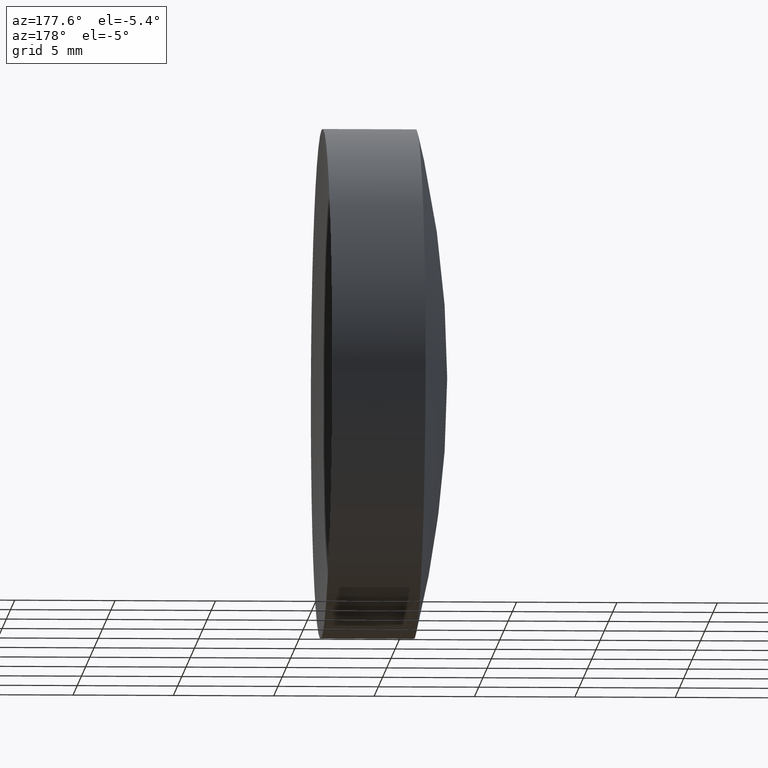
[diagram: clean part render]
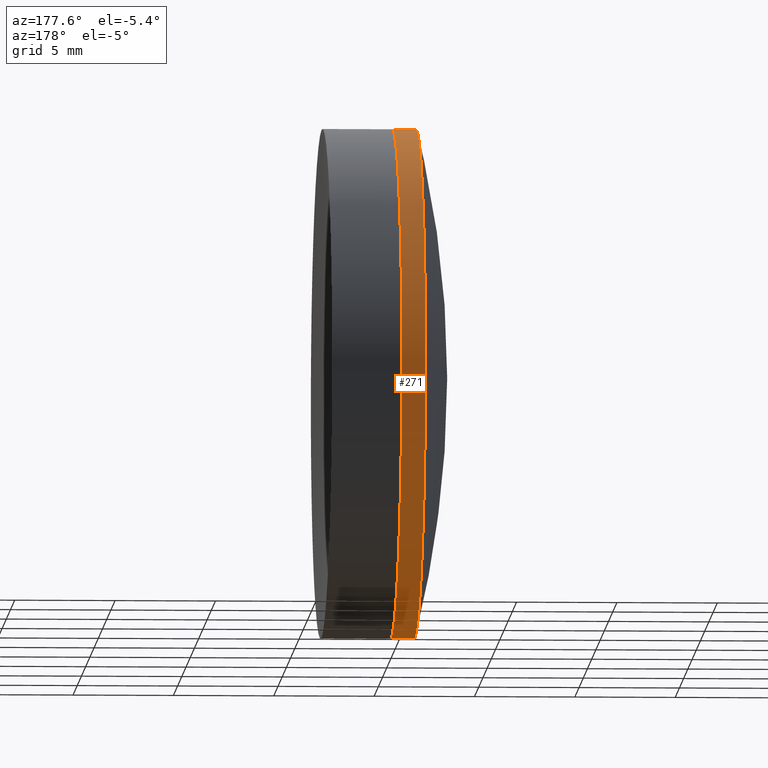
[diagram: same view with one face highlighted and labeled with its STEP entity id]
A machine part, auxiliary view. The second image highlights one B-rep face of the part: STEP entity #271.
In plain terms, the highlighted cylindrical surface (partial cylindrical patch) has radius 12.7 mm, axis along (-1, -0, -0).
Its self-contained STEP definition (entity closure, byte-faithful):
#8 = ORIENTED_EDGE ( 'NONE', *, *, #302, .F. ) ;
#11 = CIRCLE ( 'NONE', #113, 12.70000000000000600 ) ;
#13 = DIRECTION ( 'NONE',  ( 0.0000000000000000000, 0.0000000000000000000, 1.000000000000000000 ) ) ;
#59 = CARTESIAN_POINT ( 'NONE',  ( 334.0169874091439500, -1.555301434917139600E-015, 12.70000000000001900 ) ) ;
#66 = DIRECTION ( 'NONE',  ( -1.000000000000000000, -0.0000000000000000000, -0.0000000000000000000 ) ) ;
#79 = LINE ( 'NONE', #248, #285 ) ;
#84 = DIRECTION ( 'NONE',  ( -1.000000000000000000, -0.0000000000000000000, -0.0000000000000000000 ) ) ;
#88 = EDGE_CURVE ( 'NONE', #107, #180, #79, .T. ) ;
#94 = AXIS2_PLACEMENT_3D ( 'NONE', #240, #84, #112 ) ;
#95 = CARTESIAN_POINT ( 'NONE',  ( 335.1955762872631200, 1.555301434917139200E-015, -12.70000000000000600 ) ) ;
#99 = DIRECTION ( 'NONE',  ( -1.000000000000000000, -0.0000000000000000000, -0.0000000000000000000 ) ) ;
#102 = LINE ( 'NONE', #171, #165 ) ;
#107 = VERTEX_POINT ( 'NONE', #95 ) ;
#108 = DIRECTION ( 'NONE',  ( -1.000000000000000000, -0.0000000000000000000, -0.0000000000000000000 ) ) ;
#112 = DIRECTION ( 'NONE',  ( 0.0000000000000000000, 0.0000000000000000000, 1.000000000000000000 ) ) ;
#113 = AXIS2_PLACEMENT_3D ( 'NONE', #266, #108, #294 ) ;
#129 = CARTESIAN_POINT ( 'NONE',  ( 335.1955762872631200, 0.0000000000000000000, 12.70000000000000600 ) ) ;
#135 = AXIS2_PLACEMENT_3D ( 'NONE', #264, #341, #13 ) ;
#148 = CARTESIAN_POINT ( 'NONE',  ( 334.0169874091439500, 0.0000000000000000000, -12.70000000000001000 ) ) ;
#165 = VECTOR ( 'NONE', #99, 1000.000000000000000 ) ;
#171 = CARTESIAN_POINT ( 'NONE',  ( 124.5233095260452400, 0.0000000000000000000, 12.70000000000000600 ) ) ;
#180 = VERTEX_POINT ( 'NONE', #148 ) ;
#206 = EDGE_CURVE ( 'NONE', #215, #327, #102, .T. ) ;
#212 = ORIENTED_EDGE ( 'NONE', *, *, #206, .F. ) ;
#215 = VERTEX_POINT ( 'NONE', #129 ) ;
#240 = CARTESIAN_POINT ( 'NONE',  ( 334.0169874091439500, 0.0000000000000000000, 0.0000000000000000000 ) ) ;
#248 = CARTESIAN_POINT ( 'NONE',  ( 124.5233095260452400, 1.555301434917139200E-015, -12.70000000000000600 ) ) ;
#259 = ORIENTED_EDGE ( 'NONE', *, *, #280, .T. ) ;
#264 = CARTESIAN_POINT ( 'NONE',  ( 124.5233095260452400, 0.0000000000000000000, 0.0000000000000000000 ) ) ;
#266 = CARTESIAN_POINT ( 'NONE',  ( 335.1955762872631200, 0.0000000000000000000, 0.0000000000000000000 ) ) ;
#271 = ADVANCED_FACE ( 'NONE', ( #329 ), #311, .T. ) ;
#280 = EDGE_CURVE ( 'NONE', #215, #107, #11, .T. ) ;
#285 = VECTOR ( 'NONE', #66, 1000.000000000000000 ) ;
#286 = CIRCLE ( 'NONE', #94, 12.70000000000000600 ) ;
#294 = DIRECTION ( 'NONE',  ( 0.0000000000000000000, 0.0000000000000000000, 1.000000000000000000 ) ) ;
#302 = EDGE_CURVE ( 'NONE', #327, #180, #286, .T. ) ;
#311 = CYLINDRICAL_SURFACE ( 'NONE', #135, 12.70000000000000600 ) ;
#318 = EDGE_LOOP ( 'NONE', ( #259, #334, #8, #212 ) ) ;
#327 = VERTEX_POINT ( 'NONE', #59 ) ;
#329 = FACE_OUTER_BOUND ( 'NONE', #318, .T. ) ;
#334 = ORIENTED_EDGE ( 'NONE', *, *, #88, .T. ) ;
#341 = DIRECTION ( 'NONE',  ( -1.000000000000000000, -0.0000000000000000000, -0.0000000000000000000 ) ) ;